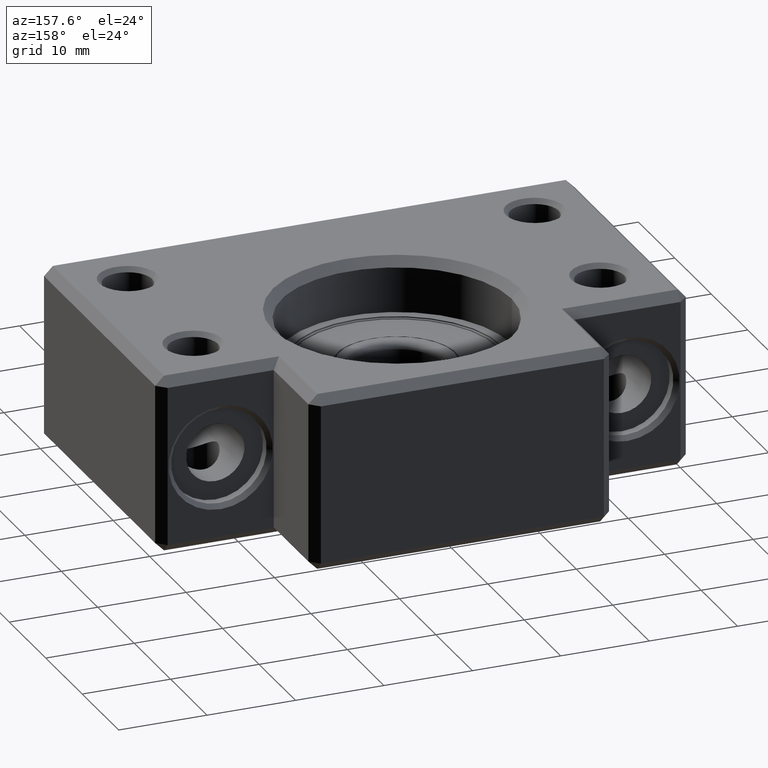
[diagram: clean part render]
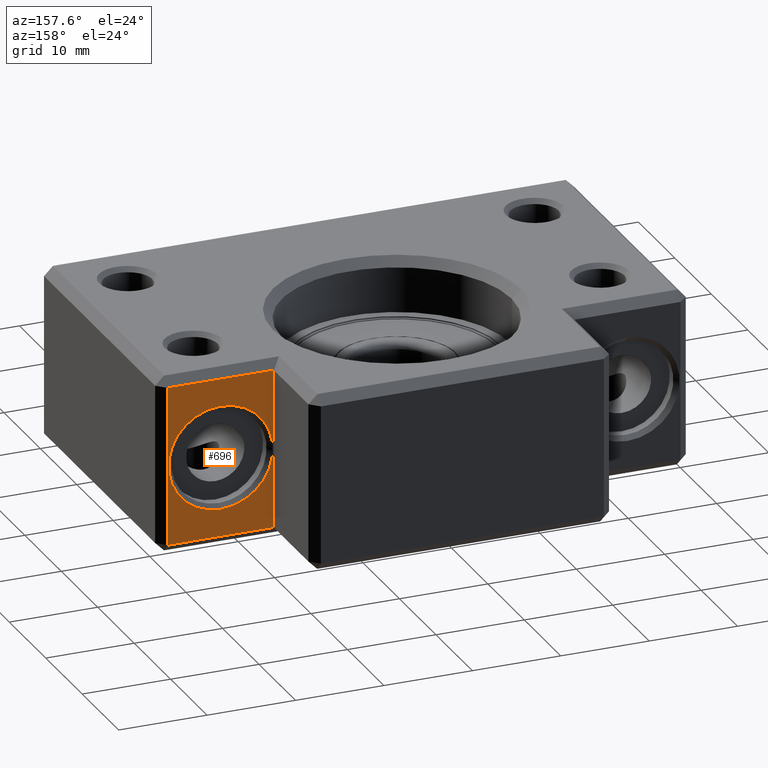
[diagram: same view with one face highlighted and labeled with its STEP entity id]
A machine part, auxiliary view. The second image highlights one B-rep face of the part: STEP entity #696.
In plain terms, the highlighted planar face has unit normal (0, -1, 0).
Its self-contained STEP definition (entity closure, byte-faithful):
#684 = VERTEX_POINT ( 'NONE', #2171 ) ;
#685 = ORIENTED_EDGE ( 'NONE', *, *, #6553, .T. ) ;
#687 = ORIENTED_EDGE ( 'NONE', *, *, #690, .F. ) ;
#688 = VERTEX_POINT ( 'NONE', #2170 ) ;
#689 = VERTEX_POINT ( 'NONE', #2169 ) ;
#690 = EDGE_CURVE ( 'NONE', #689, #688, #2168, .T. ) ;
#691 = EDGE_LOOP ( 'NONE', ( #693, #692 ) ) ;
#692 = ORIENTED_EDGE ( 'NONE', *, *, #695, .T. ) ;
#693 = ORIENTED_EDGE ( 'NONE', *, *, #5553, .T. ) ;
#694 = EDGE_LOOP ( 'NONE', ( #687, #685, #6554, #6551 ) ) ;
#695 = EDGE_CURVE ( 'NONE', #764, #5564, #2164, .T. ) ;
#696 = ADVANCED_FACE ( 'NONE', ( #2159, #2158 ), #2157, .F. ) ;
#764 = VERTEX_POINT ( 'NONE', #2324 ) ;
#2156 = CARTESIAN_POINT ( 'NONE',  ( 30.00000000000001400, 32.50000000000000700, 10.00000000000000000 ) ) ;
#2157 = PLANE ( 'NONE',  #2217 ) ;
#2158 = FACE_OUTER_BOUND ( 'NONE', #694, .T. ) ;
#2159 = FACE_BOUND ( 'NONE', #691, .T. ) ;
#2160 = DIRECTION ( 'NONE',  ( 1.000000000000000000, 0.0000000000000000000, 0.0000000000000000000 ) ) ;
#2161 = DIRECTION ( 'NONE',  ( 5.337610695313251400E-016, -1.000000000000000000, 0.0000000000000000000 ) ) ;
#2162 = CARTESIAN_POINT ( 'NONE',  ( 23.00000000000000400, 32.50000000000000000, -5.633375276077824700E-015 ) ) ;
#2163 = AXIS2_PLACEMENT_3D ( 'NONE', #2162, #2161, #2160 ) ;
#2164 = CIRCLE ( 'NONE', #2163, 5.900000000000005700 ) ;
#2165 = DIRECTION ( 'NONE',  ( -0.0000000000000000000, -0.0000000000000000000, -1.000000000000000000 ) ) ;
#2166 = VECTOR ( 'NONE', #2165, 1000.000000000000000 ) ;
#2167 = CARTESIAN_POINT ( 'NONE',  ( 17.00000000000000700, 32.50000000000000000, 10.00000000000000000 ) ) ;
#2168 = LINE ( 'NONE', #2167, #2166 ) ;
#2169 = CARTESIAN_POINT ( 'NONE',  ( 17.00000000000000700, 32.50000000000000000, 8.999999999999985800 ) ) ;
#2170 = CARTESIAN_POINT ( 'NONE',  ( 17.00000000000000700, 32.50000000000000000, -8.999999999999985800 ) ) ;
#2171 = CARTESIAN_POINT ( 'NONE',  ( 28.99999999999999600, 32.50000000000000700, 8.999999999999985800 ) ) ;
#2215 = DIRECTION ( 'NONE',  ( 1.000000000000000000, 5.337610695313251400E-016, 0.0000000000000000000 ) ) ;
#2216 = DIRECTION ( 'NONE',  ( 5.337610695313251400E-016, -1.000000000000000000, 0.0000000000000000000 ) ) ;
#2217 = AXIS2_PLACEMENT_3D ( 'NONE', #2156, #2216, #2215 ) ;
#2324 = CARTESIAN_POINT ( 'NONE',  ( 23.00000000000000400, 32.50000000000000000, -5.900000000000007500 ) ) ;
#3420 = DIRECTION ( 'NONE',  ( 1.000000000000000000, 0.0000000000000000000, 0.0000000000000000000 ) ) ;
#3421 = DIRECTION ( 'NONE',  ( 5.337610695313251400E-016, -1.000000000000000000, 0.0000000000000000000 ) ) ;
#3422 = CARTESIAN_POINT ( 'NONE',  ( 23.00000000000000400, 32.50000000000000000, -5.633375276077824700E-015 ) ) ;
#3423 = AXIS2_PLACEMENT_3D ( 'NONE', #3422, #3421, #3420 ) ;
#3424 = CIRCLE ( 'NONE', #3423, 5.900000000000005700 ) ;
#3469 = CARTESIAN_POINT ( 'NONE',  ( 23.00000000000000400, 32.50000000000000000, 5.899999999999997700 ) ) ;
#4211 = DIRECTION ( 'NONE',  ( 1.000000000000000000, 5.337610695313251400E-016, 0.0000000000000000000 ) ) ;
#5260 = VECTOR ( 'NONE', #4211, 1000.000000000000000 ) ;
#5261 = CARTESIAN_POINT ( 'NONE',  ( 30.00000000000001400, 32.50000000000000700, 8.999999999999985800 ) ) ;
#5262 = LINE ( 'NONE', #5261, #5260 ) ;
#5263 = DIRECTION ( 'NONE',  ( -1.000000000000000000, -5.337610695313251400E-016, 0.0000000000000000000 ) ) ;
#5264 = VECTOR ( 'NONE', #5263, 1000.000000000000000 ) ;
#5265 = CARTESIAN_POINT ( 'NONE',  ( 30.00000000000001400, 32.50000000000000700, -8.999999999999985800 ) ) ;
#5266 = LINE ( 'NONE', #5265, #5264 ) ;
#5305 = DIRECTION ( 'NONE',  ( 0.0000000000000000000, 0.0000000000000000000, -1.000000000000000000 ) ) ;
#5306 = VECTOR ( 'NONE', #5305, 1000.000000000000000 ) ;
#5307 = CARTESIAN_POINT ( 'NONE',  ( 28.99999999999999600, 32.50000000000000700, 10.00000000000000000 ) ) ;
#5308 = LINE ( 'NONE', #5307, #5306 ) ;
#5309 = CARTESIAN_POINT ( 'NONE',  ( 28.99999999999999600, 32.50000000000000700, -8.999999999999985800 ) ) ;
#5553 = EDGE_CURVE ( 'NONE', #5564, #764, #3424, .T. ) ;
#5564 = VERTEX_POINT ( 'NONE', #3469 ) ;
#6551 = ORIENTED_EDGE ( 'NONE', *, *, #6552, .T. ) ;
#6552 = EDGE_CURVE ( 'NONE', #6555, #688, #5266, .T. ) ;
#6553 = EDGE_CURVE ( 'NONE', #689, #684, #5262, .T. ) ;
#6554 = ORIENTED_EDGE ( 'NONE', *, *, #6556, .T. ) ;
#6555 = VERTEX_POINT ( 'NONE', #5309 ) ;
#6556 = EDGE_CURVE ( 'NONE', #684, #6555, #5308, .T. ) ;